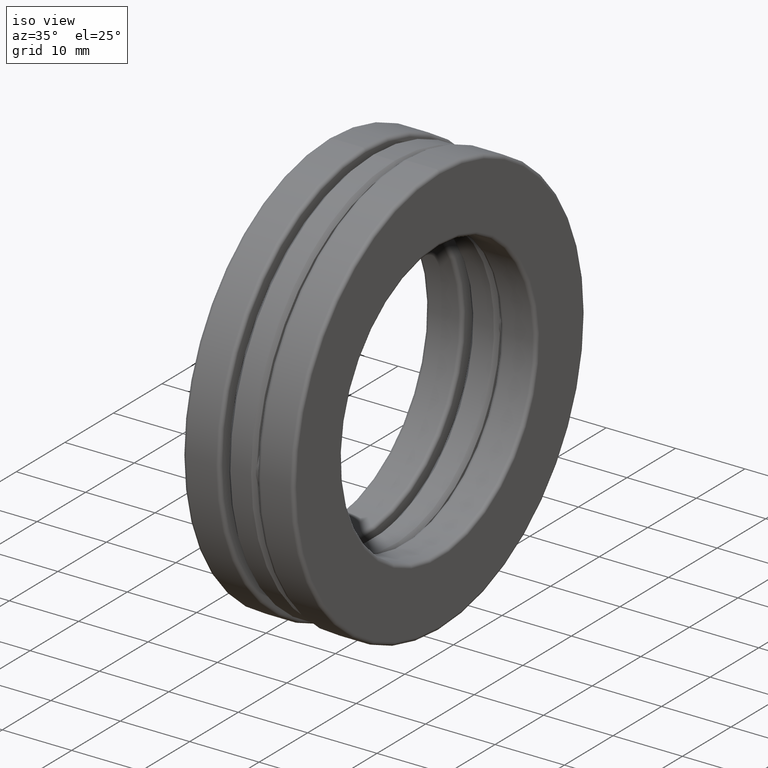
[diagram: clean part render]
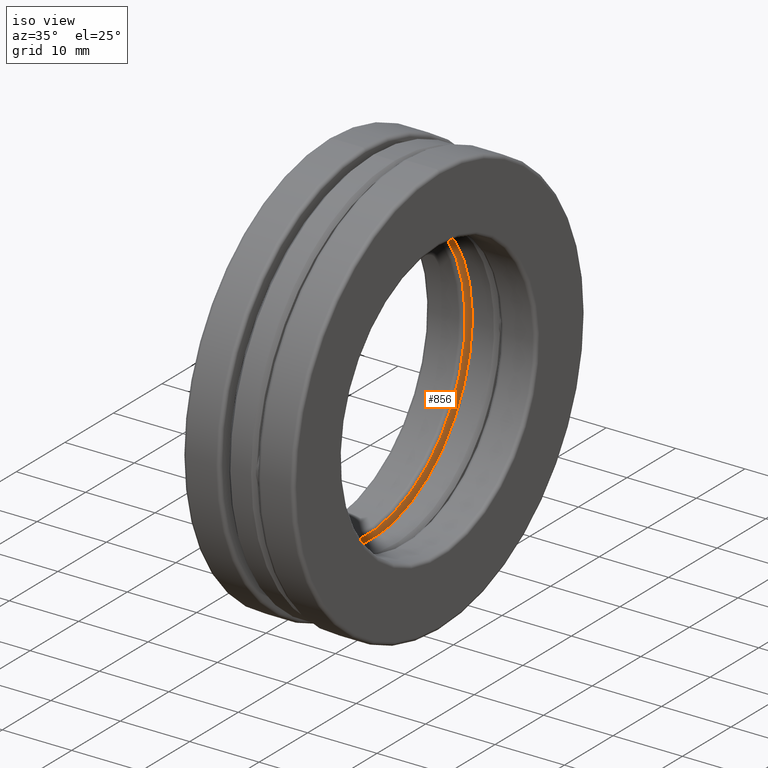
[diagram: same view with one face highlighted and labeled with its STEP entity id]
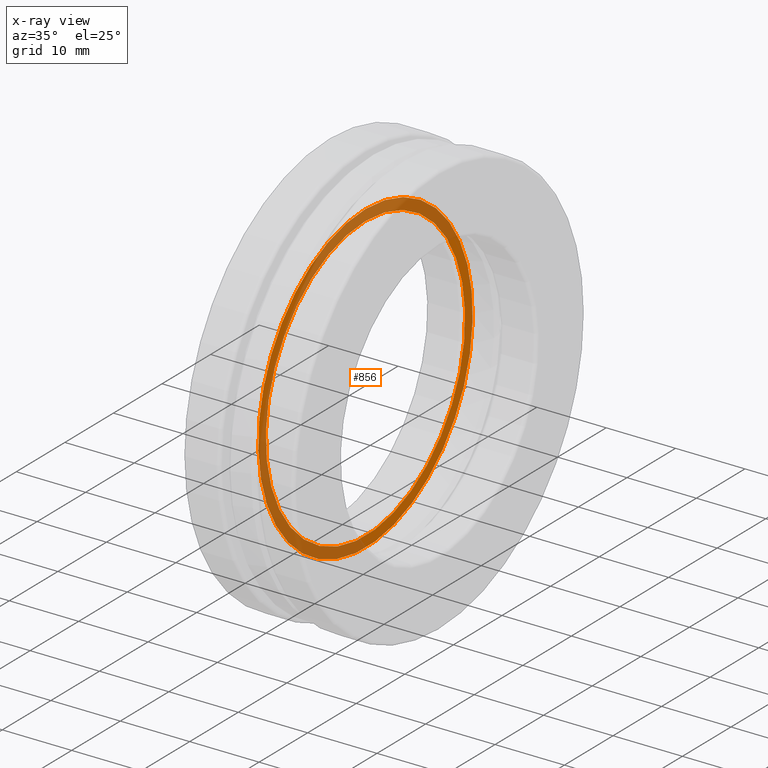
[diagram: x-ray of the same camera — body ghosted, the highlighted face saturated]
A machine part, iso view. The second image highlights one B-rep face of the part: STEP entity #856.
The next image is the same camera in x-ray: the body ghosted, the highlighted face saturated — about 55% of this face is hidden behind the body in this view.
In plain terms, the highlighted planar face has unit normal (1, 0, 0).
Its self-contained STEP definition (entity closure, byte-faithful):
#82 = EDGE_LOOP ( 'NONE', ( #882 ) ) ;
#181 = PLANE ( 'NONE',  #804 ) ;
#182 = EDGE_CURVE ( 'NONE', #447, #447, #596, .T. ) ;
#232 = FACE_BOUND ( 'NONE', #82, .T. ) ;
#235 = CARTESIAN_POINT ( 'NONE',  ( -0.1050020999999998500, 0.0000000000000000000, 0.0000000000000000000 ) ) ;
#302 = AXIS2_PLACEMENT_3D ( 'NONE', #235, #333, #980 ) ;
#333 = DIRECTION ( 'NONE',  ( -1.000000000000000000, -0.0000000000000000000, -0.0000000000000000000 ) ) ;
#390 = EDGE_LOOP ( 'NONE', ( #1107 ) ) ;
#447 = VERTEX_POINT ( 'NONE', #519 ) ;
#472 = DIRECTION ( 'NONE',  ( 0.0000000000000000000, 0.0000000000000000000, -1.000000000000000000 ) ) ;
#502 = AXIS2_PLACEMENT_3D ( 'NONE', #1015, #637, #820 ) ;
#519 = CARTESIAN_POINT ( 'NONE',  ( -0.1050020999999998500, 0.0000000000000000000, 0.8074999999999998800 ) ) ;
#523 = CARTESIAN_POINT ( 'NONE',  ( -0.1050020999999998600, 0.0000000000000000000, 0.8688786040840712500 ) ) ;
#549 = FACE_OUTER_BOUND ( 'NONE', #390, .T. ) ;
#573 = DIRECTION ( 'NONE',  ( 1.000000000000000000, 0.0000000000000000000, 0.0000000000000000000 ) ) ;
#596 = CIRCLE ( 'NONE', #302, 0.8074999999999998800 ) ;
#637 = DIRECTION ( 'NONE',  ( -1.000000000000000000, -0.0000000000000000000, -0.0000000000000000000 ) ) ;
#655 = EDGE_CURVE ( 'NONE', #920, #920, #863, .T. ) ;
#804 = AXIS2_PLACEMENT_3D ( 'NONE', #1124, #573, #472 ) ;
#820 = DIRECTION ( 'NONE',  ( 0.0000000000000000000, 0.0000000000000000000, 1.000000000000000000 ) ) ;
#856 = ADVANCED_FACE ( 'NONE', ( #232, #549 ), #181, .T. ) ;
#863 = CIRCLE ( 'NONE', #502, 0.8688786040840712500 ) ;
#882 = ORIENTED_EDGE ( 'NONE', *, *, #182, .T. ) ;
#920 = VERTEX_POINT ( 'NONE', #523 ) ;
#980 = DIRECTION ( 'NONE',  ( 0.0000000000000000000, 0.0000000000000000000, 1.000000000000000000 ) ) ;
#1015 = CARTESIAN_POINT ( 'NONE',  ( -0.1050020999999998600, 0.0000000000000000000, 0.0000000000000000000 ) ) ;
#1107 = ORIENTED_EDGE ( 'NONE', *, *, #655, .F. ) ;
#1124 = CARTESIAN_POINT ( 'NONE',  ( -0.1050020999999998500, -4.057281134590280500E-017, 0.0000000000000000000 ) ) ;